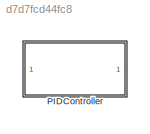
MODEL slx_d7d7fcd44fc8
KIND library
CONFIG AbsTol = auto
CONFIG EnableMultiTasking = off
CONFIG FixedStep = auto
CONFIG MaxStep = auto
CONFIG MinStep = auto
CONFIG RelTol = 1e-3
CONFIG SampleTimeConstraint = Unconstrained
CONFIG Solver = VariableStepAuto
CONFIG SolverName = VariableStepAuto
CONFIG StartTime = 0.0
CONFIG StopTime = 10.0
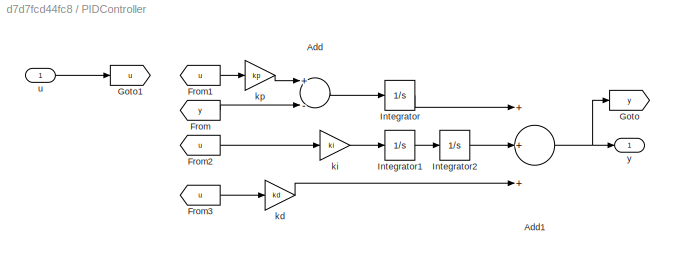
BLOCK [SubSystem] PIDController
  Ports = [1, 1]
  RequestExecContextInheritance = off
BLOCK [Sum] PIDController/Add
  InputSameDT = off
  Inputs = +-
  OutDataTypeStr = Inherit: Inherit via internal rule
  Ports = [2, 1]
  SaturateOnIntegerOverflow = off
BLOCK [Sum] PIDController/Add1
  InputSameDT = off
  Inputs = +++
  OutDataTypeStr = Inherit: Inherit via internal rule
  Ports = [3, 1]
  SaturateOnIntegerOverflow = off
BLOCK [From] PIDController/From
  GotoTag = y
BLOCK [From] PIDController/From1
  GotoTag = u
BLOCK [From] PIDController/From2
  GotoTag = u
BLOCK [From] PIDController/From3
  GotoTag = u
BLOCK [Goto] PIDController/Goto
  GotoTag = y
BLOCK [Goto] PIDController/Goto1
  GotoTag = u
BLOCK [Integrator] PIDController/Integrator
  Ports = [1, 1]
BLOCK [Integrator] PIDController/Integrator1
  Ports = [1, 1]
BLOCK [Integrator] PIDController/Integrator2
  Ports = [1, 1]
BLOCK [Gain] PIDController/kd
  Gain = kd
  OutDataTypeStr = Inherit: Inherit via internal rule
  ParamDataTypeStr = Inherit: Inherit via internal rule
  SaturateOnIntegerOverflow = off
BLOCK [Gain] PIDController/ki
  Gain = ki
  OutDataTypeStr = Inherit: Inherit via internal rule
  ParamDataTypeStr = Inherit: Inherit via internal rule
  SaturateOnIntegerOverflow = off
BLOCK [Gain] PIDController/kp
  Gain = kp
  OutDataTypeStr = Inherit: Inherit via internal rule
  ParamDataTypeStr = Inherit: Inherit via internal rule
  SaturateOnIntegerOverflow = off
BLOCK [Inport] PIDController/u
  IconDisplay = Port number
  PortDimensions = 1
BLOCK [Outport] PIDController/y
  IconDisplay = Port number
  PortDimensions = 1
NET PIDController/Add1:1 -> PIDController/Goto:1, PIDController/y:1
LINE PIDController/Add:1 -> PIDController/Integrator:1
LINE PIDController/From1:1 -> PIDController/kp:1
LINE PIDController/From2:1 -> PIDController/ki:1
LINE PIDController/From3:1 -> PIDController/kd:1
LINE PIDController/From:1 -> PIDController/Add:2
LINE PIDController/Integrator1:1 -> PIDController/Integrator2:1
LINE PIDController/Integrator2:1 -> PIDController/Add1:2
LINE PIDController/Integrator:1 -> PIDController/Add1:1
LINE PIDController/kd:1 -> PIDController/Add1:3
LINE PIDController/ki:1 -> PIDController/Integrator1:1
LINE PIDController/kp:1 -> PIDController/Add:1
LINE PIDController/u:1 -> PIDController/Goto1:1
note: NET lines group one-source signal fan-out (src -> all destinations, sorted); 1:1 wires keep LINE
